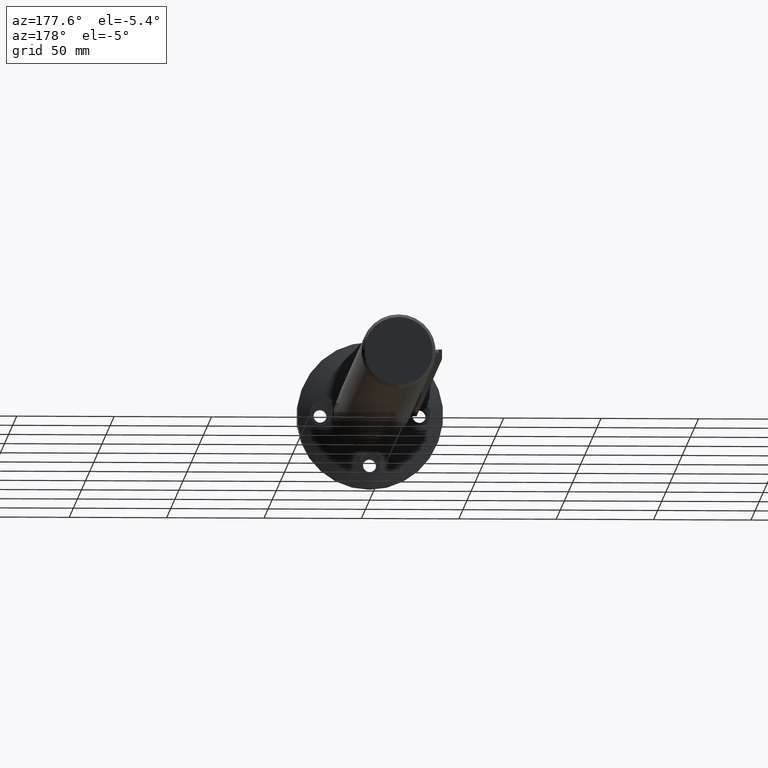
[diagram: clean part render]
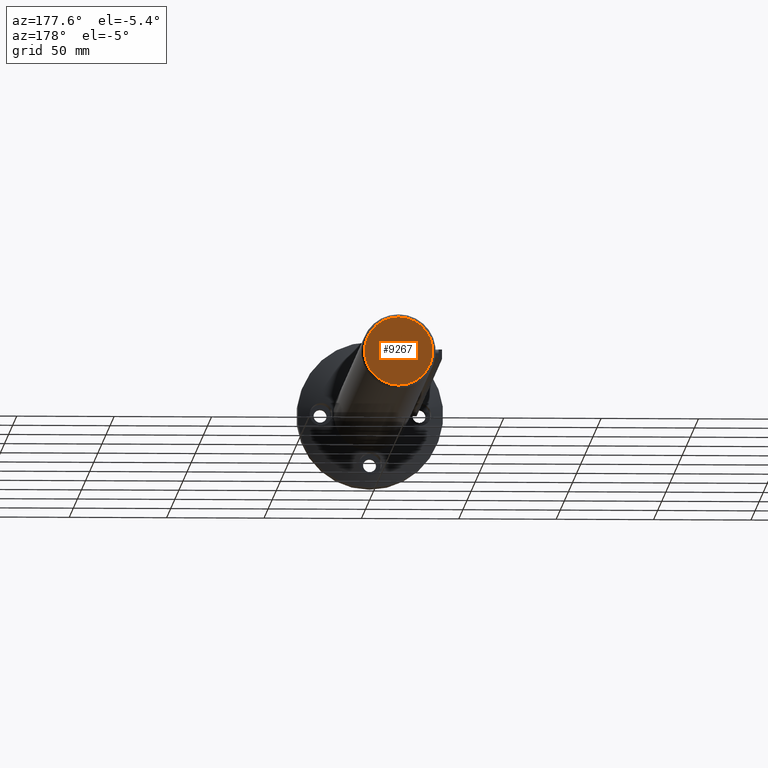
[diagram: same view with one face highlighted and labeled with its STEP entity id]
A machine part, auxiliary view. The second image highlights one B-rep face of the part: STEP entity #9267.
In plain terms, the highlighted planar face has unit normal (0, -1, 0).
Its self-contained STEP definition (entity closure, byte-faithful):
#73 = CIRCLE ( 'NONE', #19790, 17.54999999999999400 ) ;
#2880 = EDGE_CURVE ( 'NONE', #12227, #17882, #73, .T. ) ;
#3423 = ORIENTED_EDGE ( 'NONE', *, *, #11971, .F. ) ;
#3650 = DIRECTION ( 'NONE',  ( 0.0000000000000000000, -1.000000000000000000, 0.0000000000000000000 ) ) ;
#4315 = CARTESIAN_POINT ( 'NONE',  ( 0.0000000000000000000, 356.9299021791102300, 0.0000000000000000000 ) ) ;
#6455 = ORIENTED_EDGE ( 'NONE', *, *, #2880, .F. ) ;
#6515 = AXIS2_PLACEMENT_3D ( 'NONE', #4315, #11982, #13632 ) ;
#7508 = AXIS2_PLACEMENT_3D ( 'NONE', #12779, #3650, #8256 ) ;
#7716 = FACE_OUTER_BOUND ( 'NONE', #9481, .T. ) ;
#8256 = DIRECTION ( 'NONE',  ( 0.0000000000000000000, 0.0000000000000000000, -1.000000000000000000 ) ) ;
#8539 = CIRCLE ( 'NONE', #6515, 17.54999999999999400 ) ;
#9267 = ADVANCED_FACE ( 'NONE', ( #7716 ), #16111, .F. ) ;
#9460 = CARTESIAN_POINT ( 'NONE',  ( 0.0000000000000000000, 356.9299021791102300, -17.54999999999999400 ) ) ;
#9481 = EDGE_LOOP ( 'NONE', ( #6455, #3423 ) ) ;
#11858 = DIRECTION ( 'NONE',  ( -0.0000000000000000000, -1.000000000000000000, 0.0000000000000000000 ) ) ;
#11971 = EDGE_CURVE ( 'NONE', #17882, #12227, #8539, .T. ) ;
#11982 = DIRECTION ( 'NONE',  ( -0.0000000000000000000, -1.000000000000000000, 0.0000000000000000000 ) ) ;
#12227 = VERTEX_POINT ( 'NONE', #9460 ) ;
#12779 = CARTESIAN_POINT ( 'NONE',  ( -17.54999999999998600, 356.9299021791102300, -1.540743955509788700E-030 ) ) ;
#13336 = DIRECTION ( 'NONE',  ( 0.0000000000000000000, 0.0000000000000000000, -1.000000000000000000 ) ) ;
#13632 = DIRECTION ( 'NONE',  ( 0.0000000000000000000, 0.0000000000000000000, -1.000000000000000000 ) ) ;
#15341 = CARTESIAN_POINT ( 'NONE',  ( 2.241103642439656700E-015, 356.9299021791102300, 17.55000000000000100 ) ) ;
#16111 = PLANE ( 'NONE',  #7508 ) ;
#17882 = VERTEX_POINT ( 'NONE', #15341 ) ;
#19476 = CARTESIAN_POINT ( 'NONE',  ( 0.0000000000000000000, 356.9299021791102300, 0.0000000000000000000 ) ) ;
#19790 = AXIS2_PLACEMENT_3D ( 'NONE', #19476, #11858, #13336 ) ;